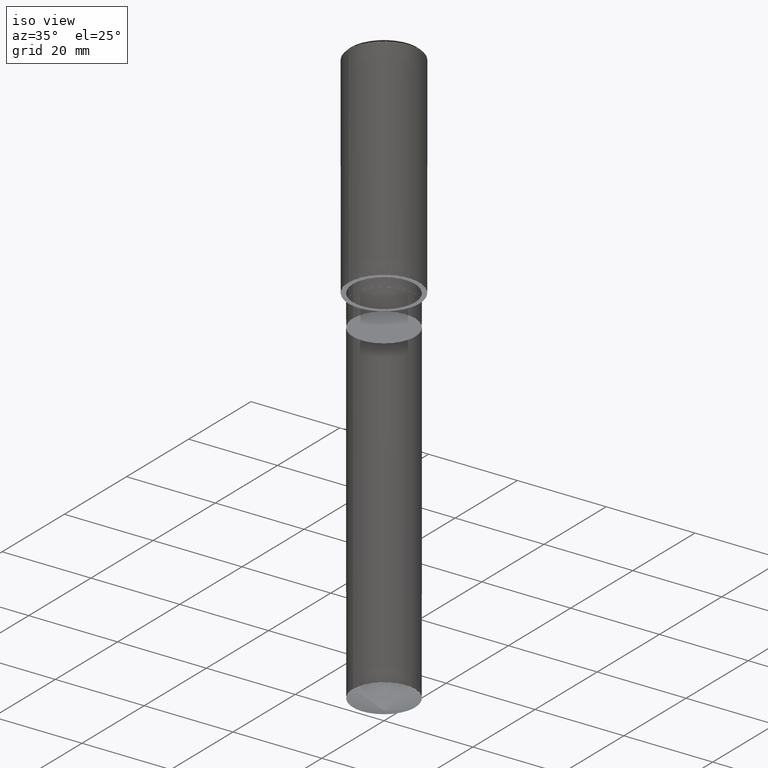
[diagram: clean part render]
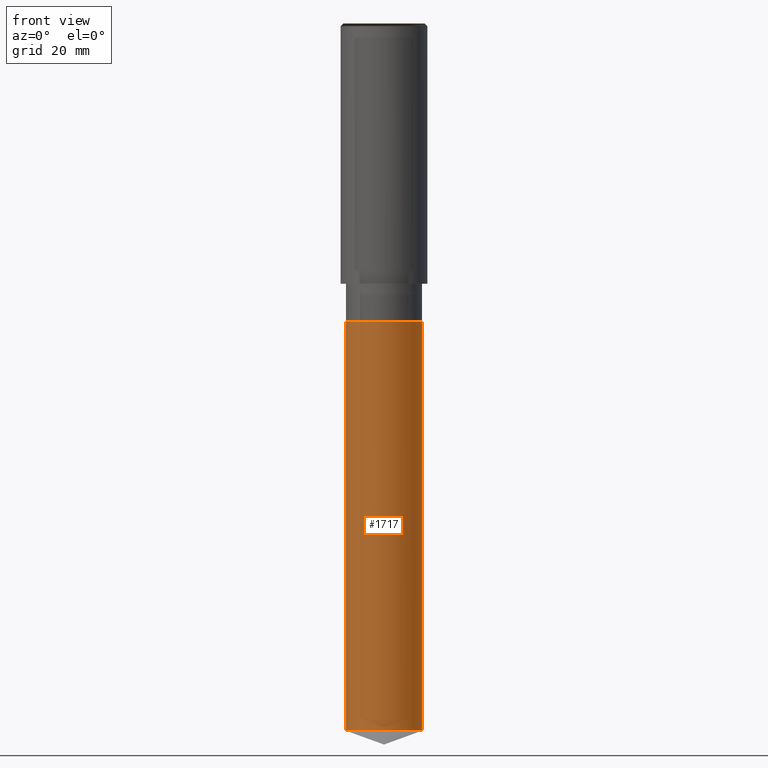
[diagram: tour spotlight — one face highlighted and labeled with its STEP entity id]
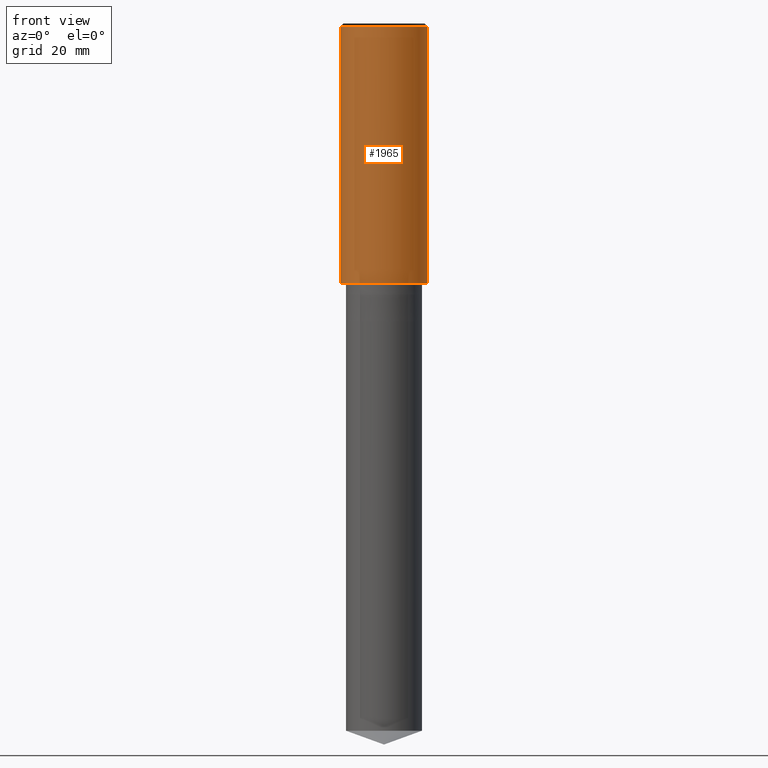
[diagram: tour spotlight — one face highlighted and labeled with its STEP entity id]
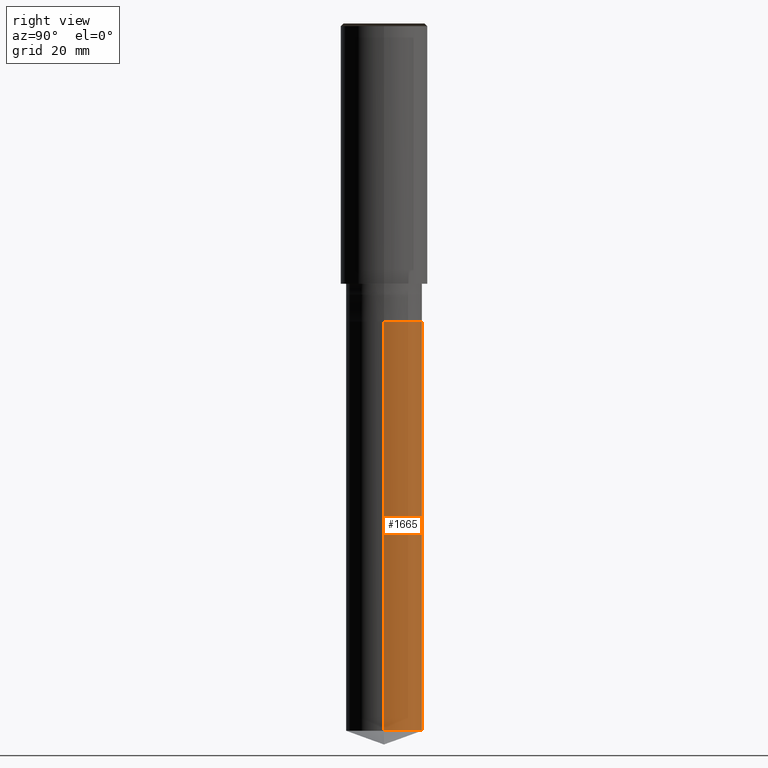
[diagram: tour spotlight — one face highlighted and labeled with its STEP entity id]
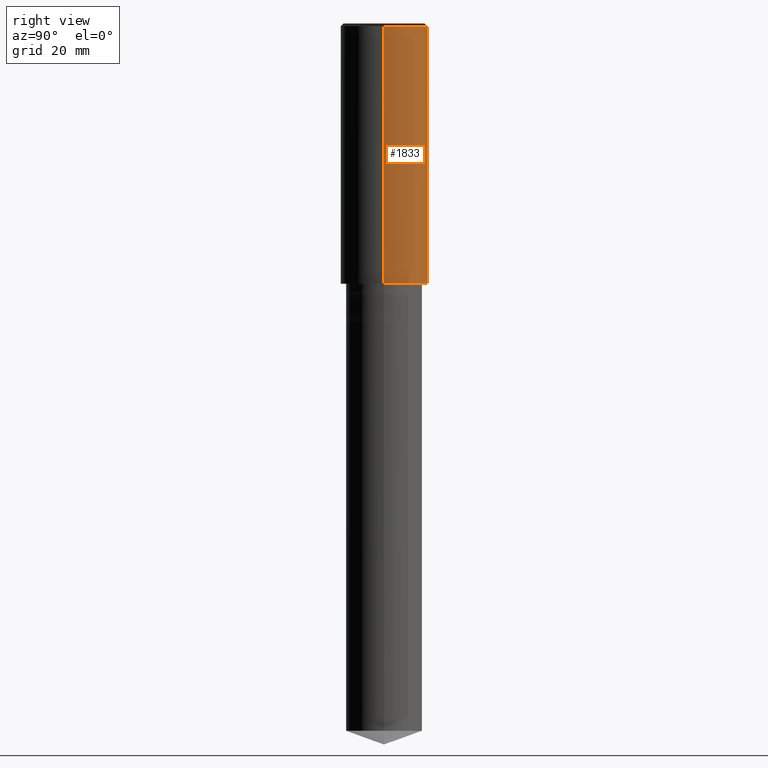
[diagram: tour spotlight — one face highlighted and labeled with its STEP entity id]
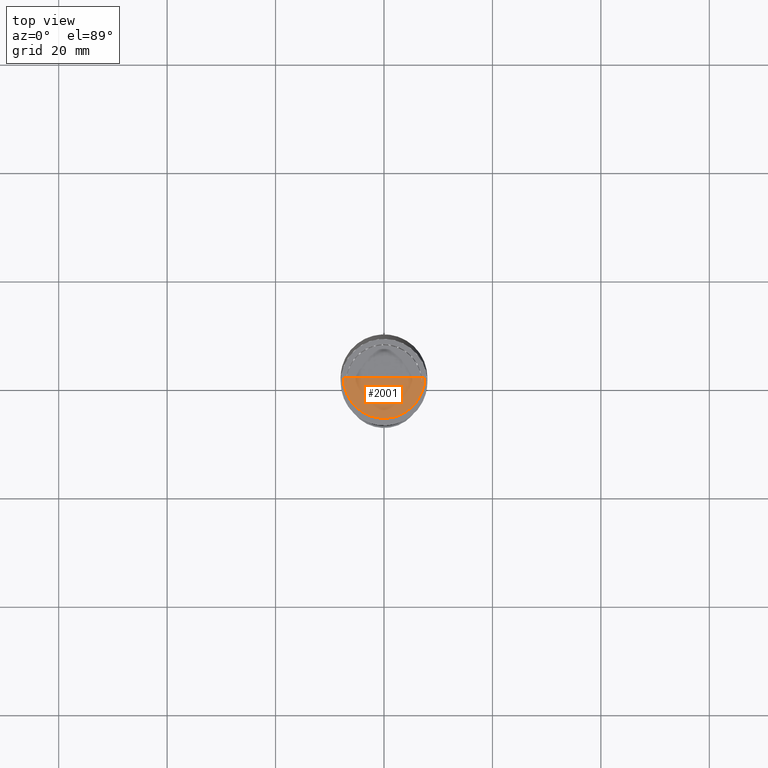
[diagram: tour spotlight — one face highlighted and labeled with its STEP entity id]
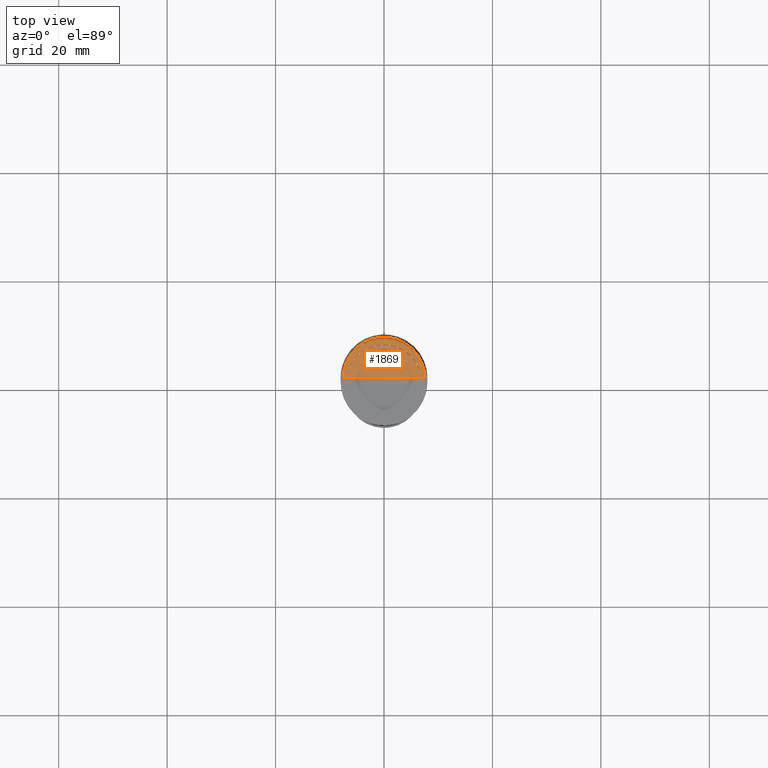
[diagram: tour spotlight — one face highlighted and labeled with its STEP entity id]
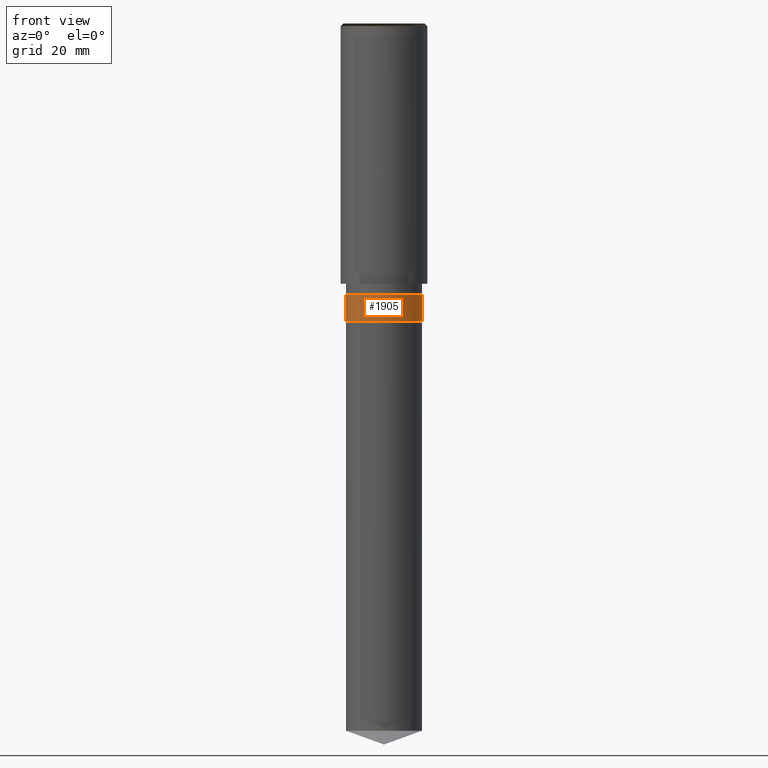
[diagram: tour spotlight — one face highlighted and labeled with its STEP entity id]
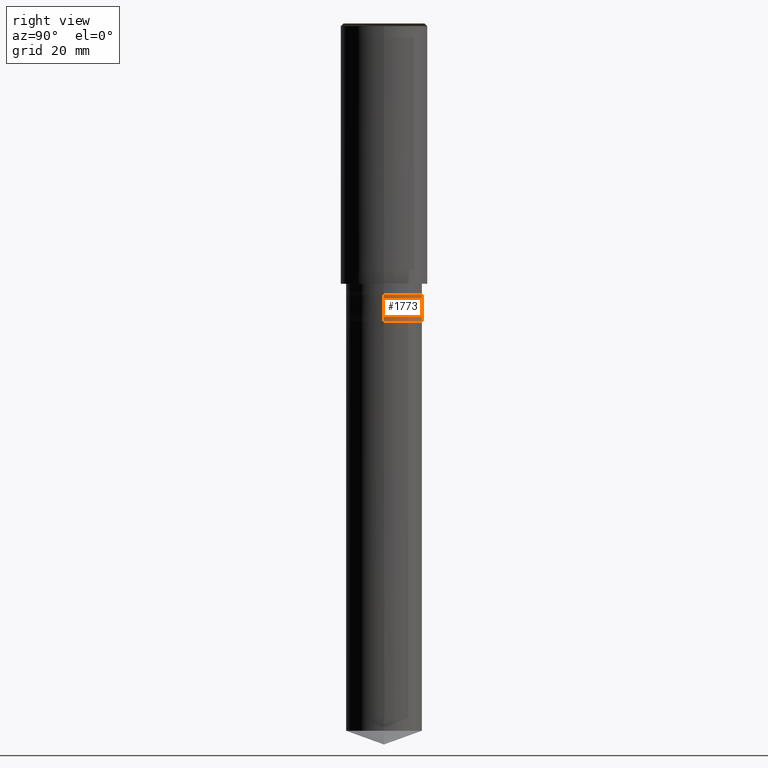
[diagram: tour spotlight — one face highlighted and labeled with its STEP entity id]
A machine part: a face-by-face anatomy tour. The part has 20 B-rep faces; the first image is the clean iso view, then the 8 largest visible faces are spotlighted one at a time (largest first), each with its STEP entity span.

Face 1 — front view, entity #1717. In plain terms, the highlighted face is a freeform B-spline surface patch.
Definition (entity closure, byte-faithful):
#1567=CARTESIAN_POINT('',(7.0,0.0,-82.452208360137));
#1571=CARTESIAN_POINT('',(-7.0,0.0,-82.452208360137));
#1572=CARTESIAN_POINT('',(7.0,0.0,-7.0));
#1576=CARTESIAN_POINT('',(-7.0,0.0,-7.0));
#1578=CARTESIAN_POINT('',(-7.0,-7.0,-82.452208360137));
#1579=CARTESIAN_POINT('',(0.0,-7.0,-82.452208360137));
#1580=CARTESIAN_POINT('',(7.0,-7.0,-82.452208360137));
#1581=CARTESIAN_POINT('',(-7.0,-7.0,-7.0));
#1582=CARTESIAN_POINT('',(0.0,-7.0,-7.0));
#1583=CARTESIAN_POINT('',(7.0,-7.0,-7.0));
#1698=(
BOUNDED_SURFACE()
B_SPLINE_SURFACE(1,2,(
(#1571,#1578,#1579,#1580,#1567),
(#1576,#1581,#1582,#1583,#1572)
), .UNSPECIFIED.,.F.,.F.,.F.)
B_SPLINE_SURFACE_WITH_KNOTS((2,2),(3,2,3),(
0.0,1.0),(
0.0,0.5,1.0), .UNSPECIFIED.)
GEOMETRIC_REPRESENTATION_ITEM()
RATIONAL_B_SPLINE_SURFACE(((1.0,0.707106781187,1.0,0.707106781187,1.0),
(1.0,0.707106781187,1.0,0.707106781187,1.0)
))
REPRESENTATION_ITEM('')
SURFACE()
);
#1699=(
BOUNDED_CURVE()
B_SPLINE_CURVE(2,(#1567,#1580,#1579,#1578,#1571),.UNSPECIFIED.,.F.,.F.)
B_SPLINE_CURVE_WITH_KNOTS((3,2,3),
(0.0,0.5,1.0),.UNSPECIFIED.)
CURVE()
GEOMETRIC_REPRESENTATION_ITEM()
RATIONAL_B_SPLINE_CURVE((1.0,0.707106781187,1.0,0.707106781187,1.0))
REPRESENTATION_ITEM('')
);
#1700=(
BOUNDED_CURVE()
B_SPLINE_CURVE(1,(#1571,#1576),.UNSPECIFIED.,.F.,.F.)
B_SPLINE_CURVE_WITH_KNOTS((2,2),
(0.0,1.0),.UNSPECIFIED.)
CURVE()
GEOMETRIC_REPRESENTATION_ITEM()
RATIONAL_B_SPLINE_CURVE((1.0,1.0))
REPRESENTATION_ITEM('')
);
#1701=(
BOUNDED_CURVE()
B_SPLINE_CURVE(2,(#1576,#1581,#1582,#1583,#1572),.UNSPECIFIED.,.F.,.F.)
B_SPLINE_CURVE_WITH_KNOTS((3,2,3),
(0.0,0.5,1.0),.UNSPECIFIED.)
CURVE()
GEOMETRIC_REPRESENTATION_ITEM()
RATIONAL_B_SPLINE_CURVE((1.0,0.707106781187,1.0,0.707106781187,1.0))
REPRESENTATION_ITEM('')
);
#1702=(
BOUNDED_CURVE()
B_SPLINE_CURVE(1,(#1572,#1567),.UNSPECIFIED.,.F.,.F.)
B_SPLINE_CURVE_WITH_KNOTS((2,2),
(0.0,1.0),.UNSPECIFIED.)
CURVE()
GEOMETRIC_REPRESENTATION_ITEM()
RATIONAL_B_SPLINE_CURVE((1.0,1.0))
REPRESENTATION_ITEM('')
);
#1703=VERTEX_POINT('',#1567);
#1704=VERTEX_POINT('',#1571);
#1705=VERTEX_POINT('',#1572);
#1706=VERTEX_POINT('',#1576);
#1707=EDGE_CURVE('',#1703,#1704,#1699,.T.);
#1708=EDGE_CURVE('',#1704,#1706,#1700,.T.);
#1709=EDGE_CURVE('',#1706,#1705,#1701,.T.);
#1710=EDGE_CURVE('',#1705,#1703,#1702,.T.);
#1711=ORIENTED_EDGE('',*,*,#1707,.T.);
#1712=ORIENTED_EDGE('',*,*,#1708,.T.);
#1713=ORIENTED_EDGE('',*,*,#1709,.T.);
#1714=ORIENTED_EDGE('',*,*,#1710,.T.);
#1715=EDGE_LOOP('',(#1711,#1712,#1713,#1714));
#1716=FACE_OUTER_BOUND('',#1715,.T.);
#1717=ADVANCED_FACE('',(#1716),#1698,.T.);

Face 2 — front view, entity #1965. In plain terms, the highlighted face is a freeform B-spline surface patch.
Definition (entity closure, byte-faithful):
#1594=CARTESIAN_POINT('',(8.0,0.0,0.0));
#1598=CARTESIAN_POINT('',(-8.0,0.0,0.0));
#1599=CARTESIAN_POINT('',(8.0,0.0,47.5));
#1603=CARTESIAN_POINT('',(-8.0,0.0,47.5));
#1616=CARTESIAN_POINT('',(-8.0,-8.0,0.0));
#1617=CARTESIAN_POINT('',(0.0,-8.0,0.0));
#1618=CARTESIAN_POINT('',(8.0,-8.0,0.0));
#1619=CARTESIAN_POINT('',(-8.0,-8.0,47.5));
#1620=CARTESIAN_POINT('',(0.0,-8.0,47.5));
#1621=CARTESIAN_POINT('',(8.0,-8.0,47.5));
#1946=(
BOUNDED_SURFACE()
B_SPLINE_SURFACE(1,2,(
(#1598,#1616,#1617,#1618,#1594),
(#1603,#1619,#1620,#1621,#1599)
), .UNSPECIFIED.,.F.,.F.,.F.)
B_SPLINE_SURFACE_WITH_KNOTS((2,2),(3,2,3),(
0.0,1.0),(
0.0,0.5,1.0), .UNSPECIFIED.)
GEOMETRIC_REPRESENTATION_ITEM()
RATIONAL_B_SPLINE_SURFACE(((1.0,0.707106781187,1.0,0.707106781187,1.0),
(1.0,0.707106781187,1.0,0.707106781187,1.0)
))
REPRESENTATION_ITEM('')
SURFACE()
);
#1947=(
BOUNDED_CURVE()
B_SPLINE_CURVE(2,(#1594,#1618,#1617,#1616,#1598),.UNSPECIFIED.,.F.,.F.)
B_SPLINE_CURVE_WITH_KNOTS((3,2,3),
(0.0,0.5,1.0),.UNSPECIFIED.)
CURVE()
GEOMETRIC_REPRESENTATION_ITEM()
RATIONAL_B_SPLINE_CURVE((1.0,0.707106781187,1.0,0.707106781187,1.0))
REPRESENTATION_ITEM('')
);
#1948=(
BOUNDED_CURVE()
B_SPLINE_CURVE(1,(#1598,#1603),.UNSPECIFIED.,.F.,.F.)
B_SPLINE_CURVE_WITH_KNOTS((2,2),
(0.0,1.0),.UNSPECIFIED.)
CURVE()
GEOMETRIC_REPRESENTATION_ITEM()
RATIONAL_B_SPLINE_CURVE((1.0,1.0))
REPRESENTATION_ITEM('')
);
#1949=(
BOUNDED_CURVE()
B_SPLINE_CURVE(2,(#1603,#1619,#1620,#1621,#1599),.UNSPECIFIED.,.F.,.F.)
B_SPLINE_CURVE_WITH_KNOTS((3,2,3),
(0.0,0.5,1.0),.UNSPECIFIED.)
CURVE()
GEOMETRIC_REPRESENTATION_ITEM()
RATIONAL_B_SPLINE_CURVE((1.0,0.707106781187,1.0,0.707106781187,1.0))
REPRESENTATION_ITEM('')
);
#1950=(
BOUNDED_CURVE()
B_SPLINE_CURVE(1,(#1599,#1594),.UNSPECIFIED.,.F.,.F.)
B_SPLINE_CURVE_WITH_KNOTS((2,2),
(0.0,1.0),.UNSPECIFIED.)
CURVE()
GEOMETRIC_REPRESENTATION_ITEM()
RATIONAL_B_SPLINE_CURVE((1.0,1.0))
REPRESENTATION_ITEM('')
);
#1951=VERTEX_POINT('',#1594);
#1952=VERTEX_POINT('',#1598);
#1953=VERTEX_POINT('',#1599);
#1954=VERTEX_POINT('',#1603);
#1955=EDGE_CURVE('',#1951,#1952,#1947,.T.);
#1956=EDGE_CURVE('',#1952,#1954,#1948,.T.);
#1957=EDGE_CURVE('',#1954,#1953,#1949,.T.);
#1958=EDGE_CURVE('',#1953,#1951,#1950,.T.);
#1959=ORIENTED_EDGE('',*,*,#1955,.T.);
#1960=ORIENTED_EDGE('',*,*,#1956,.T.);
#1961=ORIENTED_EDGE('',*,*,#1957,.T.);
#1962=ORIENTED_EDGE('',*,*,#1958,.T.);
#1963=EDGE_LOOP('',(#1959,#1960,#1961,#1962));
#1964=FACE_OUTER_BOUND('',#1963,.T.);
#1965=ADVANCED_FACE('',(#1964),#1946,.T.);

Face 3 — right view, entity #1665. In plain terms, the highlighted face is a freeform B-spline surface patch.
Definition (entity closure, byte-faithful):
#1567=CARTESIAN_POINT('',(7.0,0.0,-82.452208360137));
#1568=CARTESIAN_POINT('',(7.0,7.0,-82.452208360137));
#1569=CARTESIAN_POINT('',(0.0,7.0,-82.452208360137));
#1570=CARTESIAN_POINT('',(-7.0,7.0,-82.452208360137));
#1571=CARTESIAN_POINT('',(-7.0,0.0,-82.452208360137));
#1572=CARTESIAN_POINT('',(7.0,0.0,-7.0));
#1573=CARTESIAN_POINT('',(7.0,7.0,-7.0));
#1574=CARTESIAN_POINT('',(0.0,7.0,-7.0));
#1575=CARTESIAN_POINT('',(-7.0,7.0,-7.0));
#1576=CARTESIAN_POINT('',(-7.0,0.0,-7.0));
#1646=(
BOUNDED_SURFACE()
B_SPLINE_SURFACE(1,2,(
(#1567,#1568,#1569,#1570,#1571),
(#1572,#1573,#1574,#1575,#1576)
), .UNSPECIFIED.,.F.,.F.,.F.)
B_SPLINE_SURFACE_WITH_KNOTS((2,2),(3,2,3),(
0.0,1.0),(
0.0,0.5,1.0), .UNSPECIFIED.)
GEOMETRIC_REPRESENTATION_ITEM()
RATIONAL_B_SPLINE_SURFACE(((1.0,0.707106781187,1.0,0.707106781187,1.0),
(1.0,0.707106781187,1.0,0.707106781187,1.0)
))
REPRESENTATION_ITEM('')
SURFACE()
);
#1647=(
BOUNDED_CURVE()
B_SPLINE_CURVE(2,(#1571,#1570,#1569,#1568,#1567),.UNSPECIFIED.,.F.,.F.)
B_SPLINE_CURVE_WITH_KNOTS((3,2,3),
(0.0,0.5,1.0),.UNSPECIFIED.)
CURVE()
GEOMETRIC_REPRESENTATION_ITEM()
RATIONAL_B_SPLINE_CURVE((1.0,0.707106781187,1.0,0.707106781187,1.0))
REPRESENTATION_ITEM('')
);
#1648=(
BOUNDED_CURVE()
B_SPLINE_CURVE(1,(#1567,#1572),.UNSPECIFIED.,.F.,.F.)
B_SPLINE_CURVE_WITH_KNOTS((2,2),
(0.0,1.0),.UNSPECIFIED.)
CURVE()
GEOMETRIC_REPRESENTATION_ITEM()
RATIONAL_B_SPLINE_CURVE((1.0,1.0))
REPRESENTATION_ITEM('')
);
#1649=(
BOUNDED_CURVE()
B_SPLINE_CURVE(2,(#1572,#1573,#1574,#1575,#1576),.UNSPECIFIED.,.F.,.F.)
B_SPLINE_CURVE_WITH_KNOTS((3,2,3),
(0.0,0.5,1.0),.UNSPECIFIED.)
CURVE()
GEOMETRIC_REPRESENTATION_ITEM()
RATIONAL_B_SPLINE_CURVE((1.0,0.707106781187,1.0,0.707106781187,1.0))
REPRESENTATION_ITEM('')
);
#1650=(
BOUNDED_CURVE()
B_SPLINE_CURVE(1,(#1576,#1571),.UNSPECIFIED.,.F.,.F.)
B_SPLINE_CURVE_WITH_KNOTS((2,2),
(0.0,1.0),.UNSPECIFIED.)
CURVE()
GEOMETRIC_REPRESENTATION_ITEM()
RATIONAL_B_SPLINE_CURVE((1.0,1.0))
REPRESENTATION_ITEM('')
);
#1651=VERTEX_POINT('',#1567);
#1652=VERTEX_POINT('',#1571);
#1653=VERTEX_POINT('',#1572);
#1654=VERTEX_POINT('',#1576);
#1655=EDGE_CURVE('',#1652,#1651,#1647,.T.);
#1656=EDGE_CURVE('',#1651,#1653,#1648,.T.);
#1657=EDGE_CURVE('',#1653,#1654,#1649,.T.);
#1658=EDGE_CURVE('',#1654,#1652,#1650,.T.);
#1659=ORIENTED_EDGE('',*,*,#1655,.T.);
#1660=ORIENTED_EDGE('',*,*,#1656,.T.);
#1661=ORIENTED_EDGE('',*,*,#1657,.T.);
#1662=ORIENTED_EDGE('',*,*,#1658,.T.);
#1663=EDGE_LOOP('',(#1659,#1660,#1661,#1662));
#1664=FACE_OUTER_BOUND('',#1663,.T.);
#1665=ADVANCED_FACE('',(#1664),#1646,.T.);

Face 4 — right view, entity #1833. In plain terms, the highlighted face is a freeform B-spline surface patch.
Definition (entity closure, byte-faithful):
#1594=CARTESIAN_POINT('',(8.0,0.0,0.0));
#1595=CARTESIAN_POINT('',(8.0,8.0,0.0));
#1596=CARTESIAN_POINT('',(0.0,8.0,0.0));
#1597=CARTESIAN_POINT('',(-8.0,8.0,0.0));
#1598=CARTESIAN_POINT('',(-8.0,0.0,0.0));
#1599=CARTESIAN_POINT('',(8.0,0.0,47.5));
#1600=CARTESIAN_POINT('',(8.0,8.0,47.5));
#1601=CARTESIAN_POINT('',(0.0,8.0,47.5));
#1602=CARTESIAN_POINT('',(-8.0,8.0,47.5));
#1603=CARTESIAN_POINT('',(-8.0,0.0,47.5));
#1814=(
BOUNDED_SURFACE()
B_SPLINE_SURFACE(1,2,(
(#1594,#1595,#1596,#1597,#1598),
(#1599,#1600,#1601,#1602,#1603)
), .UNSPECIFIED.,.F.,.F.,.F.)
B_SPLINE_SURFACE_WITH_KNOTS((2,2),(3,2,3),(
0.0,1.0),(
0.0,0.5,1.0), .UNSPECIFIED.)
GEOMETRIC_REPRESENTATION_ITEM()
RATIONAL_B_SPLINE_SURFACE(((1.0,0.707106781187,1.0,0.707106781187,1.0),
(1.0,0.707106781187,1.0,0.707106781187,1.0)
))
REPRESENTATION_ITEM('')
SURFACE()
);
#1815=(
BOUNDED_CURVE()
B_SPLINE_CURVE(2,(#1598,#1597,#1596,#1595,#1594),.UNSPECIFIED.,.F.,.F.)
B_SPLINE_CURVE_WITH_KNOTS((3,2,3),
(0.0,0.5,1.0),.UNSPECIFIED.)
CURVE()
GEOMETRIC_REPRESENTATION_ITEM()
RATIONAL_B_SPLINE_CURVE((1.0,0.707106781187,1.0,0.707106781187,1.0))
REPRESENTATION_ITEM('')
);
#1816=(
BOUNDED_CURVE()
B_SPLINE_CURVE(1,(#1594,#1599),.UNSPECIFIED.,.F.,.F.)
B_SPLINE_CURVE_WITH_KNOTS((2,2),
(0.0,1.0),.UNSPECIFIED.)
CURVE()
GEOMETRIC_REPRESENTATION_ITEM()
RATIONAL_B_SPLINE_CURVE((1.0,1.0))
REPRESENTATION_ITEM('')
);
#1817=(
BOUNDED_CURVE()
B_SPLINE_CURVE(2,(#1599,#1600,#1601,#1602,#1603),.UNSPECIFIED.,.F.,.F.)
B_SPLINE_CURVE_WITH_KNOTS((3,2,3),
(0.0,0.5,1.0),.UNSPECIFIED.)
CURVE()
GEOMETRIC_REPRESENTATION_ITEM()
RATIONAL_B_SPLINE_CURVE((1.0,0.707106781187,1.0,0.707106781187,1.0))
REPRESENTATION_ITEM('')
);
#1818=(
BOUNDED_CURVE()
B_SPLINE_CURVE(1,(#1603,#1598),.UNSPECIFIED.,.F.,.F.)
B_SPLINE_CURVE_WITH_KNOTS((2,2),
(0.0,1.0),.UNSPECIFIED.)
CURVE()
GEOMETRIC_REPRESENTATION_ITEM()
RATIONAL_B_SPLINE_CURVE((1.0,1.0))
REPRESENTATION_ITEM('')
);
#1819=VERTEX_POINT('',#1594);
#1820=VERTEX_POINT('',#1598);
#1821=VERTEX_POINT('',#1599);
#1822=VERTEX_POINT('',#1603);
#1823=EDGE_CURVE('',#1820,#1819,#1815,.T.);
#1824=EDGE_CURVE('',#1819,#1821,#1816,.T.);
#1825=EDGE_CURVE('',#1821,#1822,#1817,.T.);
#1826=EDGE_CURVE('',#1822,#1820,#1818,.T.);
#1827=ORIENTED_EDGE('',*,*,#1823,.T.);
#1828=ORIENTED_EDGE('',*,*,#1824,.T.);
#1829=ORIENTED_EDGE('',*,*,#1825,.T.);
#1830=ORIENTED_EDGE('',*,*,#1826,.T.);
#1831=EDGE_LOOP('',(#1827,#1828,#1829,#1830));
#1832=FACE_OUTER_BOUND('',#1831,.T.);
#1833=ADVANCED_FACE('',(#1832),#1814,.T.);

Face 5 — top view, entity #2001. In plain terms, the highlighted face is a freeform B-spline surface patch.
Definition (entity closure, byte-faithful):
#1604=CARTESIAN_POINT('',(7.5,0.0,48.0));
#1608=CARTESIAN_POINT('',(-7.5,0.0,48.0));
#1609=CARTESIAN_POINT('',(0.0,0.0,48.0));
#1622=CARTESIAN_POINT('',(-7.5,-7.5,48.0));
#1623=CARTESIAN_POINT('',(0.0,-7.5,48.0));
#1624=CARTESIAN_POINT('',(7.5,-7.5,48.0));
#1986=(
BOUNDED_SURFACE()
B_SPLINE_SURFACE(1,2,(
(#1608,#1622,#1623,#1624,#1604),
(#1609,#1609,#1609,#1609,#1609)
), .UNSPECIFIED.,.F.,.F.,.F.)
B_SPLINE_SURFACE_WITH_KNOTS((2,2),(3,2,3),(
0.0,1.0),(
0.0,0.5,1.0), .UNSPECIFIED.)
GEOMETRIC_REPRESENTATION_ITEM()
RATIONAL_B_SPLINE_SURFACE(((1.0,0.707106781187,1.0,0.707106781187,1.0),
(1.0,0.707106781187,1.0,0.707106781187,1.0)
))
REPRESENTATION_ITEM('')
SURFACE()
);
#1987=(
BOUNDED_CURVE()
B_SPLINE_CURVE(2,(#1604,#1624,#1623,#1622,#1608),.UNSPECIFIED.,.F.,.F.)
B_SPLINE_CURVE_WITH_KNOTS((3,2,3),
(0.0,0.5,1.0),.UNSPECIFIED.)
CURVE()
GEOMETRIC_REPRESENTATION_ITEM()
RATIONAL_B_SPLINE_CURVE((1.0,0.707106781187,1.0,0.707106781187,1.0))
REPRESENTATION_ITEM('')
);
#1988=(
BOUNDED_CURVE()
B_SPLINE_CURVE(1,(#1608,#1609),.UNSPECIFIED.,.F.,.F.)
B_SPLINE_CURVE_WITH_KNOTS((2,2),
(0.0,1.0),.UNSPECIFIED.)
CURVE()
GEOMETRIC_REPRESENTATION_ITEM()
RATIONAL_B_SPLINE_CURVE((1.0,1.0))
REPRESENTATION_ITEM('')
);
#1989=(
BOUNDED_CURVE()
B_SPLINE_CURVE(1,(#1609,#1604),.UNSPECIFIED.,.F.,.F.)
B_SPLINE_CURVE_WITH_KNOTS((2,2),
(0.0,1.0),.UNSPECIFIED.)
CURVE()
GEOMETRIC_REPRESENTATION_ITEM()
RATIONAL_B_SPLINE_CURVE((1.0,1.0))
REPRESENTATION_ITEM('')
);
#1990=VERTEX_POINT('',#1604);
#1991=VERTEX_POINT('',#1608);
#1992=VERTEX_POINT('',#1609);
#1993=EDGE_CURVE('',#1990,#1991,#1987,.T.);
#1994=EDGE_CURVE('',#1991,#1992,#1988,.T.);
#1995=EDGE_CURVE('',#1992,#1990,#1989,.T.);
#1996=ORIENTED_EDGE('',*,*,#1993,.T.);
#1997=ORIENTED_EDGE('',*,*,#1994,.T.);
#1998=ORIENTED_EDGE('',*,*,#1995,.T.);
#1999=EDGE_LOOP('',(#1996,#1997,#1998));
#2000=FACE_OUTER_BOUND('',#1999,.T.);
#2001=ADVANCED_FACE('',(#2000),#1986,.T.);

Face 6 — top view, entity #1869. In plain terms, the highlighted face is a freeform B-spline surface patch.
Definition (entity closure, byte-faithful):
#1604=CARTESIAN_POINT('',(7.5,0.0,48.0));
#1605=CARTESIAN_POINT('',(7.5,7.5,48.0));
#1606=CARTESIAN_POINT('',(0.0,7.5,48.0));
#1607=CARTESIAN_POINT('',(-7.5,7.5,48.0));
#1608=CARTESIAN_POINT('',(-7.5,0.0,48.0));
#1609=CARTESIAN_POINT('',(0.0,0.0,48.0));
#1854=(
BOUNDED_SURFACE()
B_SPLINE_SURFACE(1,2,(
(#1604,#1605,#1606,#1607,#1608),
(#1609,#1609,#1609,#1609,#1609)
), .UNSPECIFIED.,.F.,.F.,.F.)
B_SPLINE_SURFACE_WITH_KNOTS((2,2),(3,2,3),(
0.0,1.0),(
0.0,0.5,1.0), .UNSPECIFIED.)
GEOMETRIC_REPRESENTATION_ITEM()
RATIONAL_B_SPLINE_SURFACE(((1.0,0.707106781187,1.0,0.707106781187,1.0),
(1.0,0.707106781187,1.0,0.707106781187,1.0)
))
REPRESENTATION_ITEM('')
SURFACE()
);
#1855=(
BOUNDED_CURVE()
B_SPLINE_CURVE(2,(#1608,#1607,#1606,#1605,#1604),.UNSPECIFIED.,.F.,.F.)
B_SPLINE_CURVE_WITH_KNOTS((3,2,3),
(0.0,0.5,1.0),.UNSPECIFIED.)
CURVE()
GEOMETRIC_REPRESENTATION_ITEM()
RATIONAL_B_SPLINE_CURVE((1.0,0.707106781187,1.0,0.707106781187,1.0))
REPRESENTATION_ITEM('')
);
#1856=(
BOUNDED_CURVE()
B_SPLINE_CURVE(1,(#1604,#1609),.UNSPECIFIED.,.F.,.F.)
B_SPLINE_CURVE_WITH_KNOTS((2,2),
(0.0,1.0),.UNSPECIFIED.)
CURVE()
GEOMETRIC_REPRESENTATION_ITEM()
RATIONAL_B_SPLINE_CURVE((1.0,1.0))
REPRESENTATION_ITEM('')
);
#1857=(
BOUNDED_CURVE()
B_SPLINE_CURVE(1,(#1609,#1608),.UNSPECIFIED.,.F.,.F.)
B_SPLINE_CURVE_WITH_KNOTS((2,2),
(0.0,1.0),.UNSPECIFIED.)
CURVE()
GEOMETRIC_REPRESENTATION_ITEM()
RATIONAL_B_SPLINE_CURVE((1.0,1.0))
REPRESENTATION_ITEM('')
);
#1858=VERTEX_POINT('',#1604);
#1859=VERTEX_POINT('',#1608);
#1860=VERTEX_POINT('',#1609);
#1861=EDGE_CURVE('',#1859,#1858,#1855,.T.);
#1862=EDGE_CURVE('',#1858,#1860,#1856,.T.);
#1863=EDGE_CURVE('',#1860,#1859,#1857,.T.);
#1864=ORIENTED_EDGE('',*,*,#1861,.T.);
#1865=ORIENTED_EDGE('',*,*,#1862,.T.);
#1866=ORIENTED_EDGE('',*,*,#1863,.T.);
#1867=EDGE_LOOP('',(#1864,#1865,#1866));
#1868=FACE_OUTER_BOUND('',#1867,.T.);
#1869=ADVANCED_FACE('',(#1868),#1854,.T.);

Face 7 — front view, entity #1905. In plain terms, the highlighted face is a freeform B-spline surface patch.
Definition (entity closure, byte-faithful):
#1572=CARTESIAN_POINT('',(7.0,0.0,-7.0));
#1576=CARTESIAN_POINT('',(-7.0,0.0,-7.0));
#1581=CARTESIAN_POINT('',(-7.0,-7.0,-7.0));
#1582=CARTESIAN_POINT('',(0.0,-7.0,-7.0));
#1583=CARTESIAN_POINT('',(7.0,-7.0,-7.0));
#1584=CARTESIAN_POINT('',(7.0,0.0,-2.0));
#1588=CARTESIAN_POINT('',(-7.0,0.0,-2.0));
#1610=CARTESIAN_POINT('',(-7.0,-7.0,-2.0));
#1611=CARTESIAN_POINT('',(0.0,-7.0,-2.0));
#1612=CARTESIAN_POINT('',(7.0,-7.0,-2.0));
#1886=(
BOUNDED_SURFACE()
B_SPLINE_SURFACE(1,2,(
(#1576,#1581,#1582,#1583,#1572),
(#1588,#1610,#1611,#1612,#1584)
), .UNSPECIFIED.,.F.,.F.,.F.)
B_SPLINE_SURFACE_WITH_KNOTS((2,2),(3,2,3),(
0.0,1.0),(
0.0,0.5,1.0), .UNSPECIFIED.)
GEOMETRIC_REPRESENTATION_ITEM()
RATIONAL_B_SPLINE_SURFACE(((1.0,0.707106781187,1.0,0.707106781187,1.0),
(1.0,0.707106781187,1.0,0.707106781187,1.0)
))
REPRESENTATION_ITEM('')
SURFACE()
);
#1887=(
BOUNDED_CURVE()
B_SPLINE_CURVE(2,(#1572,#1583,#1582,#1581,#1576),.UNSPECIFIED.,.F.,.F.)
B_SPLINE_CURVE_WITH_KNOTS((3,2,3),
(0.0,0.5,1.0),.UNSPECIFIED.)
CURVE()
GEOMETRIC_REPRESENTATION_ITEM()
RATIONAL_B_SPLINE_CURVE((1.0,0.707106781187,1.0,0.707106781187,1.0))
REPRESENTATION_ITEM('')
);
#1888=(
BOUNDED_CURVE()
B_SPLINE_CURVE(1,(#1576,#1588),.UNSPECIFIED.,.F.,.F.)
B_SPLINE_CURVE_WITH_KNOTS((2,2),
(0.0,1.0),.UNSPECIFIED.)
CURVE()
GEOMETRIC_REPRESENTATION_ITEM()
RATIONAL_B_SPLINE_CURVE((1.0,1.0))
REPRESENTATION_ITEM('')
);
#1889=(
BOUNDED_CURVE()
B_SPLINE_CURVE(2,(#1588,#1610,#1611,#1612,#1584),.UNSPECIFIED.,.F.,.F.)
B_SPLINE_CURVE_WITH_KNOTS((3,2,3),
(0.0,0.5,1.0),.UNSPECIFIED.)
CURVE()
GEOMETRIC_REPRESENTATION_ITEM()
RATIONAL_B_SPLINE_CURVE((1.0,0.707106781187,1.0,0.707106781187,1.0))
REPRESENTATION_ITEM('')
);
#1890=(
BOUNDED_CURVE()
B_SPLINE_CURVE(1,(#1584,#1572),.UNSPECIFIED.,.F.,.F.)
B_SPLINE_CURVE_WITH_KNOTS((2,2),
(0.0,1.0),.UNSPECIFIED.)
CURVE()
GEOMETRIC_REPRESENTATION_ITEM()
RATIONAL_B_SPLINE_CURVE((1.0,1.0))
REPRESENTATION_ITEM('')
);
#1891=VERTEX_POINT('',#1572);
#1892=VERTEX_POINT('',#1576);
#1893=VERTEX_POINT('',#1584);
#1894=VERTEX_POINT('',#1588);
#1895=EDGE_CURVE('',#1891,#1892,#1887,.T.);
#1896=EDGE_CURVE('',#1892,#1894,#1888,.T.);
#1897=EDGE_CURVE('',#1894,#1893,#1889,.T.);
#1898=EDGE_CURVE('',#1893,#1891,#1890,.T.);
#1899=ORIENTED_EDGE('',*,*,#1895,.T.);
#1900=ORIENTED_EDGE('',*,*,#1896,.T.);
#1901=ORIENTED_EDGE('',*,*,#1897,.T.);
#1902=ORIENTED_EDGE('',*,*,#1898,.T.);
#1903=EDGE_LOOP('',(#1899,#1900,#1901,#1902));
#1904=FACE_OUTER_BOUND('',#1903,.T.);
#1905=ADVANCED_FACE('',(#1904),#1886,.T.);

Face 8 — right view, entity #1773. In plain terms, the highlighted face is a freeform B-spline surface patch.
Definition (entity closure, byte-faithful):
#1572=CARTESIAN_POINT('',(7.0,0.0,-7.0));
#1573=CARTESIAN_POINT('',(7.0,7.0,-7.0));
#1574=CARTESIAN_POINT('',(0.0,7.0,-7.0));
#1575=CARTESIAN_POINT('',(-7.0,7.0,-7.0));
#1576=CARTESIAN_POINT('',(-7.0,0.0,-7.0));
#1584=CARTESIAN_POINT('',(7.0,0.0,-2.0));
#1585=CARTESIAN_POINT('',(7.0,7.0,-2.0));
#1586=CARTESIAN_POINT('',(0.0,7.0,-2.0));
#1587=CARTESIAN_POINT('',(-7.0,7.0,-2.0));
#1588=CARTESIAN_POINT('',(-7.0,0.0,-2.0));
#1754=(
BOUNDED_SURFACE()
B_SPLINE_SURFACE(1,2,(
(#1572,#1573,#1574,#1575,#1576),
(#1584,#1585,#1586,#1587,#1588)
), .UNSPECIFIED.,.F.,.F.,.F.)
B_SPLINE_SURFACE_WITH_KNOTS((2,2),(3,2,3),(
0.0,1.0),(
0.0,0.5,1.0), .UNSPECIFIED.)
GEOMETRIC_REPRESENTATION_ITEM()
RATIONAL_B_SPLINE_SURFACE(((1.0,0.707106781187,1.0,0.707106781187,1.0),
(1.0,0.707106781187,1.0,0.707106781187,1.0)
))
REPRESENTATION_ITEM('')
SURFACE()
);
#1755=(
BOUNDED_CURVE()
B_SPLINE_CURVE(2,(#1576,#1575,#1574,#1573,#1572),.UNSPECIFIED.,.F.,.F.)
B_SPLINE_CURVE_WITH_KNOTS((3,2,3),
(0.0,0.5,1.0),.UNSPECIFIED.)
CURVE()
GEOMETRIC_REPRESENTATION_ITEM()
RATIONAL_B_SPLINE_CURVE((1.0,0.707106781187,1.0,0.707106781187,1.0))
REPRESENTATION_ITEM('')
);
#1756=(
BOUNDED_CURVE()
B_SPLINE_CURVE(1,(#1572,#1584),.UNSPECIFIED.,.F.,.F.)
B_SPLINE_CURVE_WITH_KNOTS((2,2),
(0.0,1.0),.UNSPECIFIED.)
CURVE()
GEOMETRIC_REPRESENTATION_ITEM()
RATIONAL_B_SPLINE_CURVE((1.0,1.0))
REPRESENTATION_ITEM('')
);
#1757=(
BOUNDED_CURVE()
B_SPLINE_CURVE(2,(#1584,#1585,#1586,#1587,#1588),.UNSPECIFIED.,.F.,.F.)
B_SPLINE_CURVE_WITH_KNOTS((3,2,3),
(0.0,0.5,1.0),.UNSPECIFIED.)
CURVE()
GEOMETRIC_REPRESENTATION_ITEM()
RATIONAL_B_SPLINE_CURVE((1.0,0.707106781187,1.0,0.707106781187,1.0))
REPRESENTATION_ITEM('')
);
#1758=(
BOUNDED_CURVE()
B_SPLINE_CURVE(1,(#1588,#1576),.UNSPECIFIED.,.F.,.F.)
B_SPLINE_CURVE_WITH_KNOTS((2,2),
(0.0,1.0),.UNSPECIFIED.)
CURVE()
GEOMETRIC_REPRESENTATION_ITEM()
RATIONAL_B_SPLINE_CURVE((1.0,1.0))
REPRESENTATION_ITEM('')
);
#1759=VERTEX_POINT('',#1572);
#1760=VERTEX_POINT('',#1576);
#1761=VERTEX_POINT('',#1584);
#1762=VERTEX_POINT('',#1588);
#1763=EDGE_CURVE('',#1760,#1759,#1755,.T.);
#1764=EDGE_CURVE('',#1759,#1761,#1756,.T.);
#1765=EDGE_CURVE('',#1761,#1762,#1757,.T.);
#1766=EDGE_CURVE('',#1762,#1760,#1758,.T.);
#1767=ORIENTED_EDGE('',*,*,#1763,.T.);
#1768=ORIENTED_EDGE('',*,*,#1764,.T.);
#1769=ORIENTED_EDGE('',*,*,#1765,.T.);
#1770=ORIENTED_EDGE('',*,*,#1766,.T.);
#1771=EDGE_LOOP('',(#1767,#1768,#1769,#1770));
#1772=FACE_OUTER_BOUND('',#1771,.T.);
#1773=ADVANCED_FACE('',(#1772),#1754,.T.);